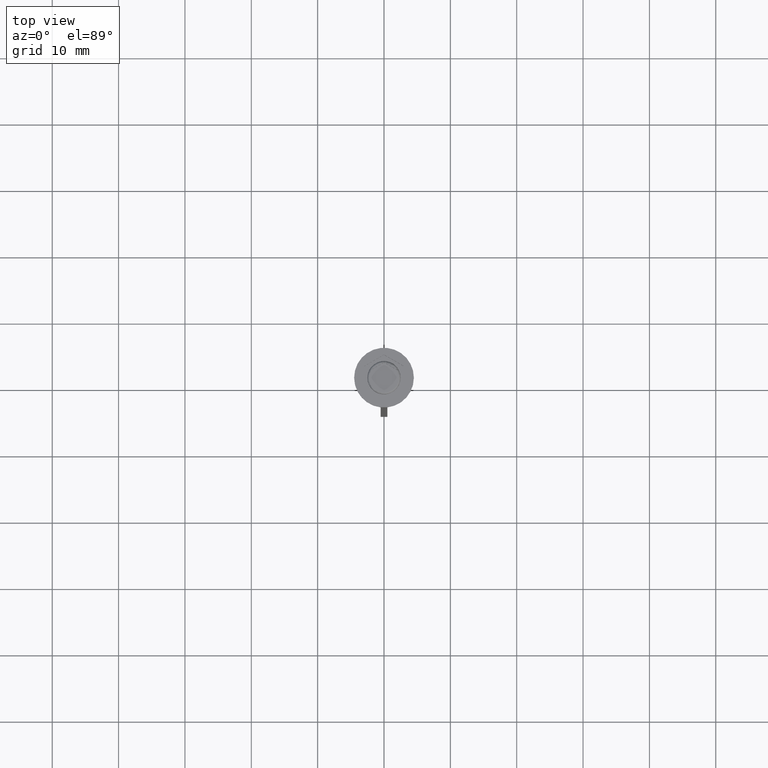
[diagram: clean part render]
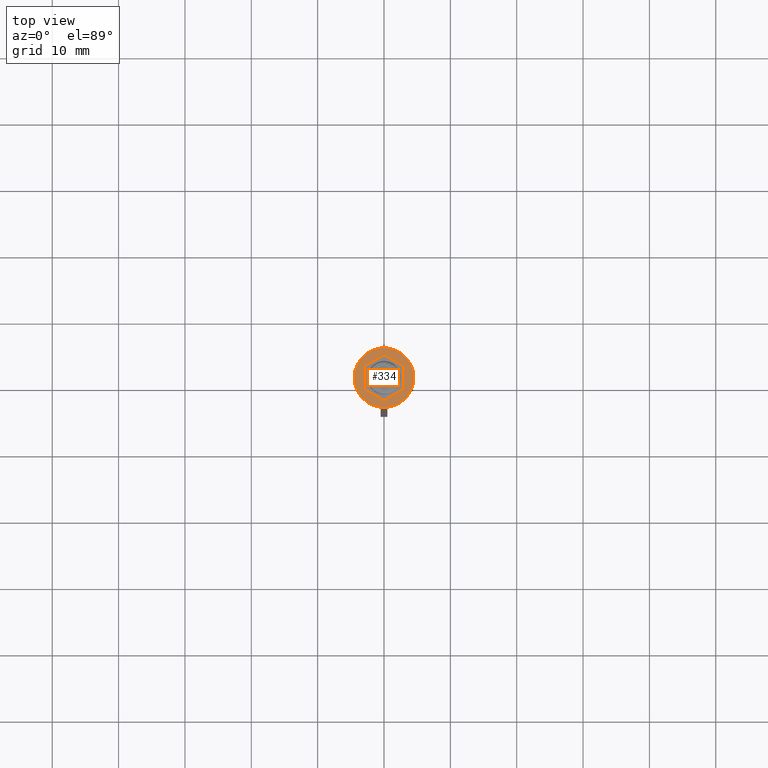
[diagram: same view with one face highlighted and labeled with its STEP entity id]
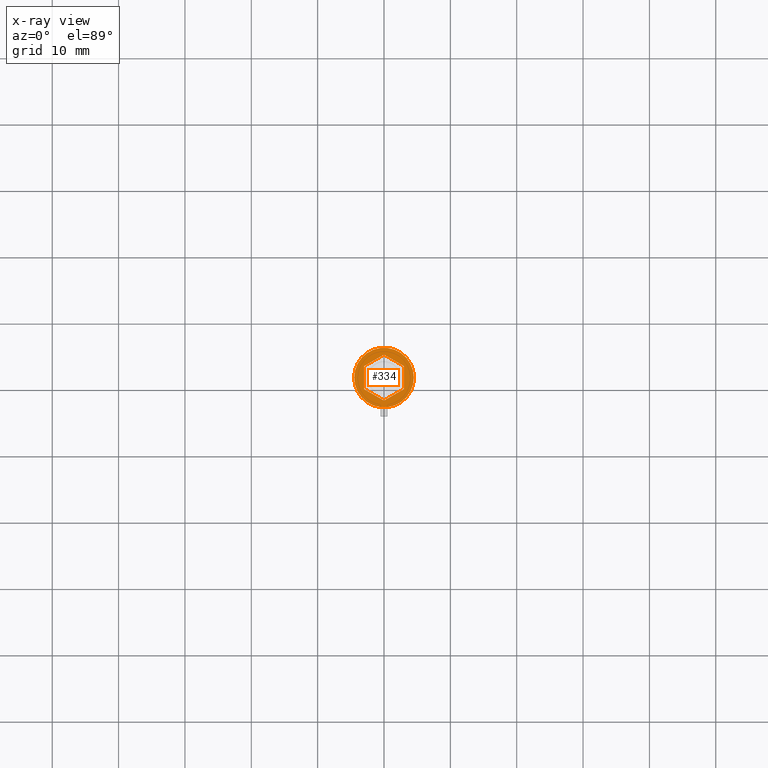
[diagram: x-ray of the same camera — body ghosted, the highlighted face saturated]
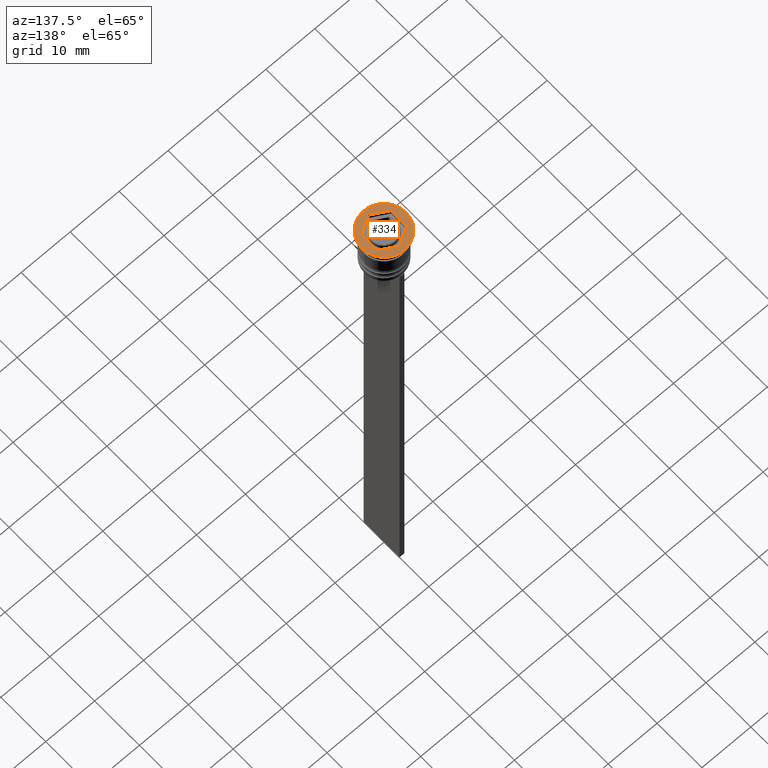
[diagram: same view with one face highlighted and labeled with its STEP entity id]
A machine part, top view. The second image highlights one B-rep face of the part: STEP entity #334.
The next image is the same camera in x-ray: the body ghosted, the highlighted face saturated — about 0% of this face is hidden behind the body in this view.
A second angle (auxiliary view) of the same face is appended — the face is thin or edge-on in the first view.
In plain terms, the highlighted planar face has unit normal (0, -0, 1).
Its self-contained STEP definition (entity closure, byte-faithful):
#134 = CARTESIAN_POINT ( 'NONE',  ( 3.000000000000000888, 1.732050807568877415, 0.000000000000000000 ) ) ;
#213 = CARTESIAN_POINT ( 'NONE',  ( -3.000000000000000000, 1.732050807568876749, 0.000000000000000000 ) ) ;
#256 = EDGE_CURVE ( 'NONE', #468, #1291, #1350, .T. ) ;
#334 = ADVANCED_FACE ( 'NONE', ( #1557, #2167 ), #434, .T. ) ;
#356 = AXIS2_PLACEMENT_3D ( 'NONE', #885, #1041, #2463 ) ;
#415 = CARTESIAN_POINT ( 'NONE',  ( 3.000000000000000000, -1.732050807568876971, 0.000000000000000000 ) ) ;
#434 = PLANE ( 'NONE',  #2494 ) ;
#468 = VERTEX_POINT ( 'NONE', #415 ) ;
#544 = LINE ( 'NONE', #727, #1108 ) ;
#573 = EDGE_CURVE ( 'NONE', #1291, #1498, #1864, .T. ) ;
#614 = CARTESIAN_POINT ( 'NONE',  ( 0.000000000000000000, 0.000000000000000000, 0.000000000000000000 ) ) ;
#651 = CARTESIAN_POINT ( 'NONE',  ( -4.500000000000000000, 5.510910596163088569E-16, 0.000000000000000000 ) ) ;
#715 = VECTOR ( 'NONE', #1969, 1000.000000000000000 ) ;
#727 = CARTESIAN_POINT ( 'NONE',  ( 0.000000000000000000, 3.464101615137754386, 0.000000000000000000 ) ) ;
#816 = ORIENTED_EDGE ( 'NONE', *, *, #256, .F. ) ;
#885 = CARTESIAN_POINT ( 'NONE',  ( 0.000000000000000000, 0.000000000000000000, 0.000000000000000000 ) ) ;
#1001 = DIRECTION ( 'NONE',  ( 0.000000000000000000, -1.000000000000000000, 0.000000000000000000 ) ) ;
#1019 = EDGE_CURVE ( 'NONE', #1517, #1833, #2121, .T. ) ;
#1041 = DIRECTION ( 'NONE',  ( -0.000000000000000000, -0.000000000000000000, 1.000000000000000000 ) ) ;
#1062 = LINE ( 'NONE', #2240, #1892 ) ;
#1108 = VECTOR ( 'NONE', #1831, 1000.000000000000227 ) ;
#1145 = EDGE_CURVE ( 'NONE', #1282, #2208, #1761, .T. ) ;
#1270 = VECTOR ( 'NONE', #1668, 1000.000000000000114 ) ;
#1275 = AXIS2_PLACEMENT_3D ( 'NONE', #1763, #1924, #1732 ) ;
#1282 = VERTEX_POINT ( 'NONE', #1890 ) ;
#1291 = VERTEX_POINT ( 'NONE', #1878 ) ;
#1294 = CARTESIAN_POINT ( 'NONE',  ( -2.112280747572084180E-16, -3.464101615137754830, 0.000000000000000000 ) ) ;
#1345 = CARTESIAN_POINT ( 'NONE',  ( -2.112280747572084180E-16, -3.464101615137754830, 0.000000000000000000 ) ) ;
#1350 = LINE ( 'NONE', #2407, #715 ) ;
#1436 = CIRCLE ( 'NONE', #356, 4.500000000000000000 ) ;
#1498 = VERTEX_POINT ( 'NONE', #2125 ) ;
#1517 = VERTEX_POINT ( 'NONE', #1589 ) ;
#1527 = ORIENTED_EDGE ( 'NONE', *, *, #2064, .T. ) ;
#1548 = ORIENTED_EDGE ( 'NONE', *, *, #1145, .F. ) ;
#1557 = FACE_BOUND ( 'NONE', #2535, .T. ) ;
#1570 = EDGE_CURVE ( 'NONE', #2151, #468, #1929, .T. ) ;
#1589 = CARTESIAN_POINT ( 'NONE',  ( 4.500000000000000000, 0.000000000000000000, 0.000000000000000000 ) ) ;
#1651 = VECTOR ( 'NONE', #1001, 1000.000000000000000 ) ;
#1668 = DIRECTION ( 'NONE',  ( -0.8660254037844387076, 0.4999999999999997780, 0.000000000000000000 ) ) ;
#1708 = ORIENTED_EDGE ( 'NONE', *, *, #1787, .F. ) ;
#1709 = ORIENTED_EDGE ( 'NONE', *, *, #1019, .T. ) ;
#1732 = DIRECTION ( 'NONE',  ( 1.000000000000000000, 0.000000000000000000, 0.000000000000000000 ) ) ;
#1761 = LINE ( 'NONE', #213, #1651 ) ;
#1763 = CARTESIAN_POINT ( 'NONE',  ( 0.000000000000000000, 0.000000000000000000, 0.000000000000000000 ) ) ;
#1781 = EDGE_LOOP ( 'NONE', ( #1709, #1527 ) ) ;
#1787 = EDGE_CURVE ( 'NONE', #1498, #1282, #544, .T. ) ;
#1820 = ORIENTED_EDGE ( 'NONE', *, *, #573, .F. ) ;
#1822 = VECTOR ( 'NONE', #1978, 1000.000000000000000 ) ;
#1831 = DIRECTION ( 'NONE',  ( -0.8660254037844385966, -0.5000000000000000000, 0.000000000000000000 ) ) ;
#1833 = VERTEX_POINT ( 'NONE', #651 ) ;
#1864 = LINE ( 'NONE', #134, #1270 ) ;
#1878 = CARTESIAN_POINT ( 'NONE',  ( 3.000000000000000888, 1.732050807568877415, 0.000000000000000000 ) ) ;
#1890 = CARTESIAN_POINT ( 'NONE',  ( -3.000000000000000000, 1.732050807568876749, 0.000000000000000000 ) ) ;
#1892 = VECTOR ( 'NONE', #2216, 1000.000000000000227 ) ;
#1924 = DIRECTION ( 'NONE',  ( -0.000000000000000000, -0.000000000000000000, 1.000000000000000000 ) ) ;
#1929 = LINE ( 'NONE', #1345, #1822 ) ;
#1969 = DIRECTION ( 'NONE',  ( 2.503857664561932376E-16, 1.000000000000000000, 0.000000000000000000 ) ) ;
#1978 = DIRECTION ( 'NONE',  ( 0.8660254037844385966, 0.5000000000000001110, 0.000000000000000000 ) ) ;
#1979 = EDGE_CURVE ( 'NONE', #2208, #2151, #1062, .T. ) ;
#1987 = DIRECTION ( 'NONE',  ( 1.000000000000000000, 0.000000000000000000, 0.000000000000000000 ) ) ;
#2064 = EDGE_CURVE ( 'NONE', #1833, #1517, #1436, .T. ) ;
#2121 = CIRCLE ( 'NONE', #1275, 4.500000000000000000 ) ;
#2125 = CARTESIAN_POINT ( 'NONE',  ( -2.168404344971008868E-16, 3.464101615137753942, 0.000000000000000000 ) ) ;
#2151 = VERTEX_POINT ( 'NONE', #1294 ) ;
#2167 = FACE_OUTER_BOUND ( 'NONE', #1781, .T. ) ;
#2208 = VERTEX_POINT ( 'NONE', #2490 ) ;
#2216 = DIRECTION ( 'NONE',  ( 0.8660254037844385966, -0.4999999999999998890, 0.000000000000000000 ) ) ;
#2240 = CARTESIAN_POINT ( 'NONE',  ( -3.000000000000000000, -1.732050807568877637, 0.000000000000000000 ) ) ;
#2316 = ORIENTED_EDGE ( 'NONE', *, *, #1979, .F. ) ;
#2364 = DIRECTION ( 'NONE',  ( 0.000000000000000000, -0.000000000000000000, 1.000000000000000000 ) ) ;
#2389 = ORIENTED_EDGE ( 'NONE', *, *, #1570, .F. ) ;
#2407 = CARTESIAN_POINT ( 'NONE',  ( 3.000000000000000000, -1.732050807568876971, 0.000000000000000000 ) ) ;
#2463 = DIRECTION ( 'NONE',  ( 1.000000000000000000, 0.000000000000000000, 0.000000000000000000 ) ) ;
#2490 = CARTESIAN_POINT ( 'NONE',  ( -3.000000000000000000, -1.732050807568877637, 0.000000000000000000 ) ) ;
#2494 = AXIS2_PLACEMENT_3D ( 'NONE', #614, #2364, #1987 ) ;
#2535 = EDGE_LOOP ( 'NONE', ( #1820, #816, #2389, #2316, #1548, #1708 ) ) ;